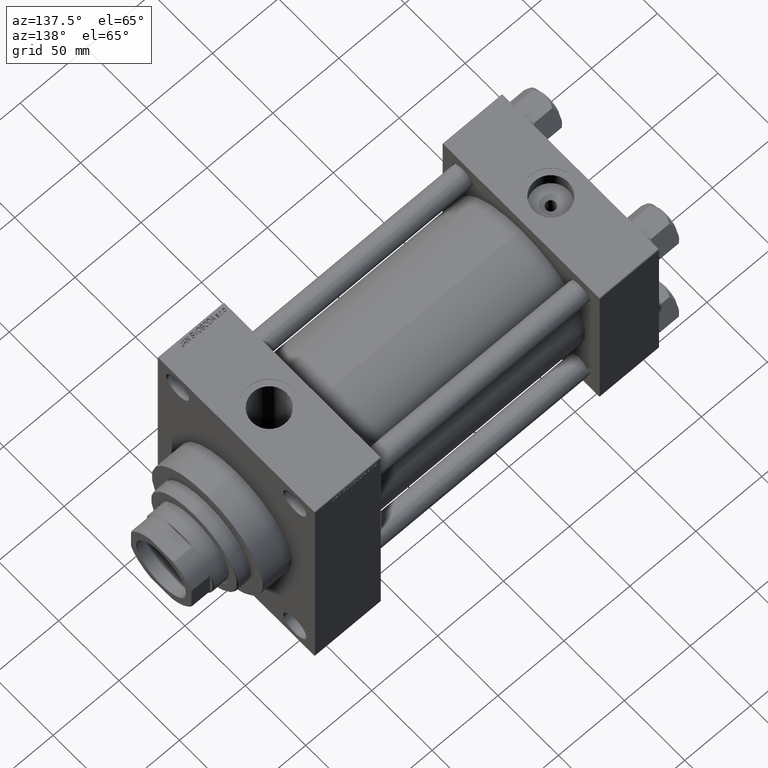
[diagram: clean part render]
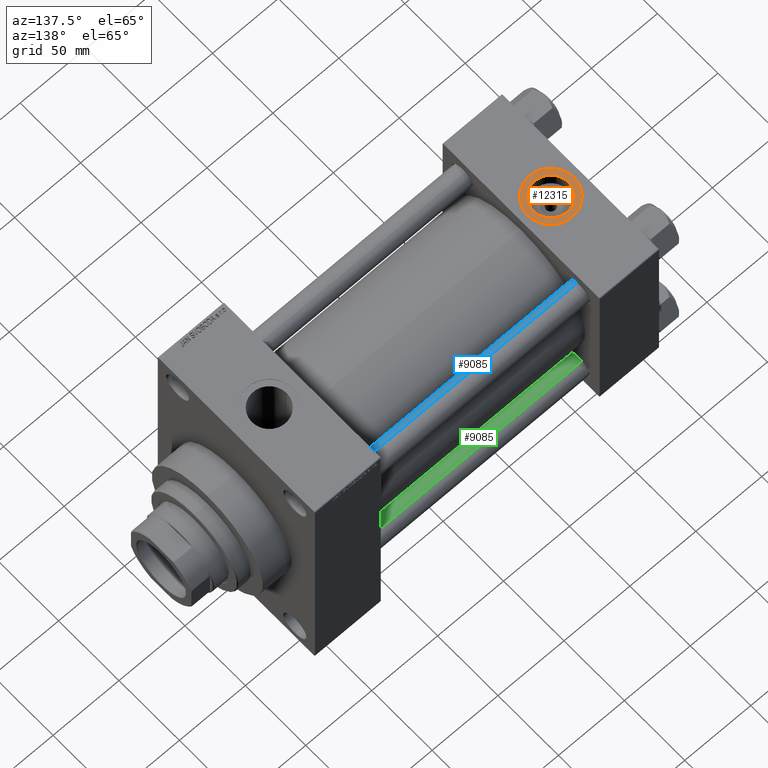
[diagram: same view with three faces highlighted in distinct colors, each labeled with its STEP entity id]
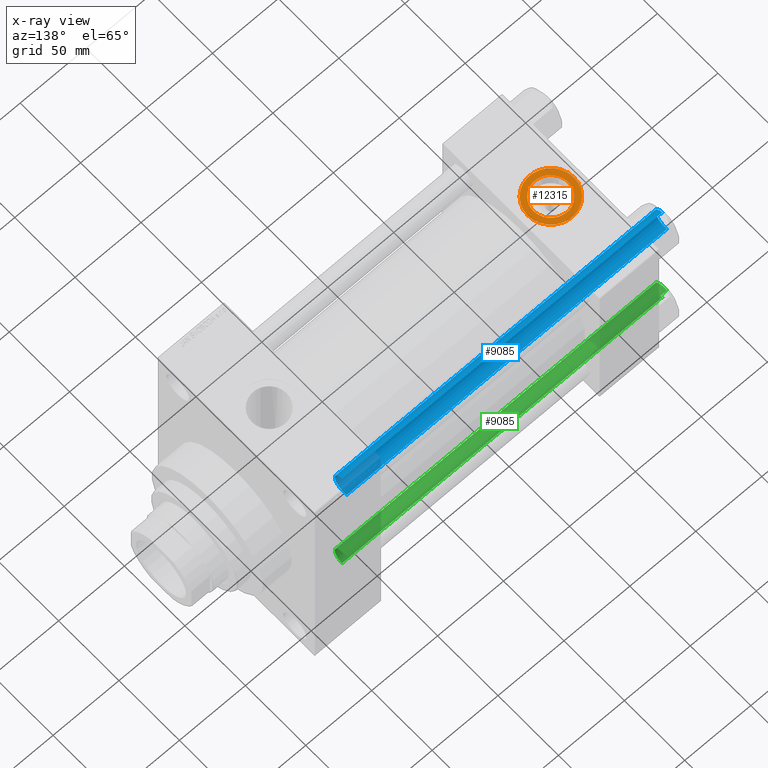
[diagram: x-ray of the same camera — body ghosted, the three highlighted faces saturated]
A machine part, auxiliary view with three faces highlighted in distinct colors.
The next image is the same camera in x-ray (body ghosted, the three faces saturated) — at least one of them is partly hidden behind the body in this view.
Their STEP definitions:

[orange] entity #12315 — the highlighted planar face has unit normal (0, 0, 1).
#1980 = AXIS2_PLACEMENT_3D ( 'NONE', #22598, #41646, #44795 ) ;
#4479 = CIRCLE ( 'NONE', #12971, 17.50000000000000000 ) ;
#6930 = DIRECTION ( 'NONE',  ( 0.000000000000000000, 0.000000000000000000, 1.000000000000000000 ) ) ;
#7250 = CARTESIAN_POINT ( 'NONE',  ( 22.50000000000000000, -8.673617379884035472E-15, 64.79999999999999716 ) ) ;
#7586 = VERTEX_POINT ( 'NONE', #8178 ) ;
#8178 = CARTESIAN_POINT ( 'NONE',  ( 40.00000000000000000, -8.673617379884035472E-15, 64.79999999999999716 ) ) ;
#9392 = CARTESIAN_POINT ( 'NONE',  ( 35.71999999999999886, -8.673617379884035472E-15, 64.79999999999999716 ) ) ;
#10447 = ORIENTED_EDGE ( 'NONE', *, *, #21418, .T. ) ;
#12315 = ADVANCED_FACE ( 'NONE', ( #25824, #21729 ), #36928, .T. ) ;
#12971 = AXIS2_PLACEMENT_3D ( 'NONE', #14490, #28775, #21529 ) ;
#14486 = DIRECTION ( 'NONE',  ( 1.000000000000000000, 0.000000000000000000, 0.000000000000000000 ) ) ;
#14490 = CARTESIAN_POINT ( 'NONE',  ( 22.50000000000000000, -8.673617379884035472E-15, 64.79999999999999716 ) ) ;
#15280 = EDGE_CURVE ( 'NONE', #38960, #7586, #4479, .T. ) ;
#15341 = CARTESIAN_POINT ( 'NONE',  ( 4.999999999999997335, -6.530485481376167224E-15, 64.79999999999999716 ) ) ;
#17953 = EDGE_LOOP ( 'NONE', ( #10447, #22885 ) ) ;
#18096 = DIRECTION ( 'NONE',  ( 1.000000000000000000, 0.000000000000000000, -0.000000000000000000 ) ) ;
#19179 = EDGE_LOOP ( 'NONE', ( #43774, #35041 ) ) ;
#21418 = EDGE_CURVE ( 'NONE', #7586, #38960, #25869, .T. ) ;
#21529 = DIRECTION ( 'NONE',  ( 1.000000000000000000, 0.000000000000000000, 0.000000000000000000 ) ) ;
#21729 = FACE_OUTER_BOUND ( 'NONE', #17953, .T. ) ;
#22598 = CARTESIAN_POINT ( 'NONE',  ( 22.50000000000000000, -8.673617379884035472E-15, 64.79999999999999716 ) ) ;
#22885 = ORIENTED_EDGE ( 'NONE', *, *, #15280, .T. ) ;
#25824 = FACE_BOUND ( 'NONE', #19179, .T. ) ;
#25869 = CIRCLE ( 'NONE', #1980, 17.50000000000000000 ) ;
#28775 = DIRECTION ( 'NONE',  ( 0.000000000000000000, 0.000000000000000000, 1.000000000000000000 ) ) ;
#29184 = AXIS2_PLACEMENT_3D ( 'NONE', #29212, #29682, #18096 ) ;
#29212 = CARTESIAN_POINT ( 'NONE',  ( 22.50000000000000000, -8.673617379884035472E-15, 64.79999999999999716 ) ) ;
#29225 = EDGE_CURVE ( 'NONE', #30119, #35245, #46175, .T. ) ;
#29682 = DIRECTION ( 'NONE',  ( 0.000000000000000000, 0.000000000000000000, 1.000000000000000000 ) ) ;
#29949 = DIRECTION ( 'NONE',  ( 0.000000000000000000, 0.000000000000000000, 1.000000000000000000 ) ) ;
#30119 = VERTEX_POINT ( 'NONE', #38142 ) ;
#31527 = AXIS2_PLACEMENT_3D ( 'NONE', #7250, #29949, #14486 ) ;
#33008 = DIRECTION ( 'NONE',  ( 1.000000000000000000, 0.000000000000000000, 0.000000000000000000 ) ) ;
#35041 = ORIENTED_EDGE ( 'NONE', *, *, #29225, .F. ) ;
#35245 = VERTEX_POINT ( 'NONE', #9392 ) ;
#36475 = AXIS2_PLACEMENT_3D ( 'NONE', #43626, #6930, #33008 ) ;
#36928 = PLANE ( 'NONE',  #29184 ) ;
#38142 = CARTESIAN_POINT ( 'NONE',  ( 9.279999999999994031, -7.054634311411234321E-15, 64.79999999999999716 ) ) ;
#38960 = VERTEX_POINT ( 'NONE', #15341 ) ;
#41646 = DIRECTION ( 'NONE',  ( 0.000000000000000000, 0.000000000000000000, 1.000000000000000000 ) ) ;
#42228 = EDGE_CURVE ( 'NONE', #35245, #30119, #42642, .T. ) ;
#42642 = CIRCLE ( 'NONE', #36475, 13.22000000000000242 ) ;
#43626 = CARTESIAN_POINT ( 'NONE',  ( 22.50000000000000000, -8.673617379884035472E-15, 64.79999999999999716 ) ) ;
#43774 = ORIENTED_EDGE ( 'NONE', *, *, #42228, .F. ) ;
#44795 = DIRECTION ( 'NONE',  ( 1.000000000000000000, 0.000000000000000000, 0.000000000000000000 ) ) ;
#46175 = CIRCLE ( 'NONE', #31527, 13.22000000000000242 ) ;

[blue] entity #9085 — the highlighted cylindrical surface (edge-blend (fillet) strip) has radius 8 mm, axis along (-1, -0, 0).
#261 = LINE ( 'NONE', #26582, #41164 ) ;
#730 = EDGE_CURVE ( 'NONE', #41807, #20914, #261, .T. ) ;
#1928 = DIRECTION ( 'NONE',  ( -0.000000000000000000, -0.000000000000000000, -1.000000000000000000 ) ) ;
#3253 = CYLINDRICAL_SURFACE ( 'NONE', #26772, 8.000000000000000000 ) ;
#4209 = FACE_OUTER_BOUND ( 'NONE', #26462, .T. ) ;
#5974 = CARTESIAN_POINT ( 'NONE',  ( 8.000000000000000000, 9.797174393178823685E-16, 0.5000000000001669775 ) ) ;
#6049 = AXIS2_PLACEMENT_3D ( 'NONE', #40707, #37809, #38039 ) ;
#6139 = DIRECTION ( 'NONE',  ( -0.000000000000000000, -0.000000000000000000, 1.000000000000000000 ) ) ;
#6369 = CIRCLE ( 'NONE', #39540, 8.000000000000000000 ) ;
#9085 = ADVANCED_FACE ( 'NONE', ( #4209 ), #3253, .T. ) ;
#11806 = EDGE_CURVE ( 'NONE', #41807, #45856, #14506, .T. ) ;
#14506 = CIRCLE ( 'NONE', #6049, 8.000000000000000000 ) ;
#17245 = DIRECTION ( 'NONE',  ( 1.000000000000000000, 0.000000000000000000, 0.000000000000000000 ) ) ;
#17998 = DIRECTION ( 'NONE',  ( -0.000000000000000000, -0.000000000000000000, -1.000000000000000000 ) ) ;
#18710 = DIRECTION ( 'NONE',  ( -1.000000000000000000, 0.000000000000000000, 0.000000000000000000 ) ) ;
#20294 = CARTESIAN_POINT ( 'NONE',  ( -8.000000000000000000, 0.000000000000000000, 244.0000000000000000 ) ) ;
#20591 = EDGE_CURVE ( 'NONE', #45856, #25780, #35971, .T. ) ;
#20914 = VERTEX_POINT ( 'NONE', #5974 ) ;
#21367 = ORIENTED_EDGE ( 'NONE', *, *, #20591, .T. ) ;
#23764 = ORIENTED_EDGE ( 'NONE', *, *, #730, .F. ) ;
#25780 = VERTEX_POINT ( 'NONE', #41716 ) ;
#26462 = EDGE_LOOP ( 'NONE', ( #23764, #32950, #21367, #27003 ) ) ;
#26582 = CARTESIAN_POINT ( 'NONE',  ( 8.000000000000000000, 9.797174393178823685E-16, 244.0000000000000000 ) ) ;
#26772 = AXIS2_PLACEMENT_3D ( 'NONE', #40438, #17998, #18710 ) ;
#27003 = ORIENTED_EDGE ( 'NONE', *, *, #44623, .T. ) ;
#31406 = CARTESIAN_POINT ( 'NONE',  ( -8.000000000000000000, 0.000000000000000000, 243.5000000000001421 ) ) ;
#32950 = ORIENTED_EDGE ( 'NONE', *, *, #11806, .T. ) ;
#35971 = LINE ( 'NONE', #20294, #37447 ) ;
#37447 = VECTOR ( 'NONE', #1928, 1000.000000000000000 ) ;
#37809 = DIRECTION ( 'NONE',  ( 0.000000000000000000, 0.000000000000000000, -1.000000000000000000 ) ) ;
#38039 = DIRECTION ( 'NONE',  ( 1.000000000000000000, 0.000000000000000000, 0.000000000000000000 ) ) ;
#39540 = AXIS2_PLACEMENT_3D ( 'NONE', #46467, #6139, #17245 ) ;
#40438 = CARTESIAN_POINT ( 'NONE',  ( 0.000000000000000000, 0.000000000000000000, 244.0000000000000000 ) ) ;
#40707 = CARTESIAN_POINT ( 'NONE',  ( 0.000000000000000000, 0.000000000000000000, 243.5000000000001421 ) ) ;
#41164 = VECTOR ( 'NONE', #41297, 1000.000000000000000 ) ;
#41297 = DIRECTION ( 'NONE',  ( -0.000000000000000000, -0.000000000000000000, -1.000000000000000000 ) ) ;
#41716 = CARTESIAN_POINT ( 'NONE',  ( -8.000000000000000000, 0.000000000000000000, 0.5000000000001669775 ) ) ;
#41807 = VERTEX_POINT ( 'NONE', #47546 ) ;
#44623 = EDGE_CURVE ( 'NONE', #25780, #20914, #6369, .T. ) ;
#45856 = VERTEX_POINT ( 'NONE', #31406 ) ;
#46467 = CARTESIAN_POINT ( 'NONE',  ( 0.000000000000000000, 0.000000000000000000, 0.5000000000001669775 ) ) ;
#47546 = CARTESIAN_POINT ( 'NONE',  ( 8.000000000000000000, 9.797174393178823685E-16, 243.5000000000001421 ) ) ;

[green] entity #9085 — the highlighted cylindrical surface (edge-blend (fillet) strip) has radius 8 mm, axis along (1, -0, 0).
#261 = LINE ( 'NONE', #26582, #41164 ) ;
#730 = EDGE_CURVE ( 'NONE', #41807, #20914, #261, .T. ) ;
#1928 = DIRECTION ( 'NONE',  ( -0.000000000000000000, -0.000000000000000000, -1.000000000000000000 ) ) ;
#3253 = CYLINDRICAL_SURFACE ( 'NONE', #26772, 8.000000000000000000 ) ;
#4209 = FACE_OUTER_BOUND ( 'NONE', #26462, .T. ) ;
#5974 = CARTESIAN_POINT ( 'NONE',  ( 8.000000000000000000, 9.797174393178823685E-16, 0.5000000000001669775 ) ) ;
#6049 = AXIS2_PLACEMENT_3D ( 'NONE', #40707, #37809, #38039 ) ;
#6139 = DIRECTION ( 'NONE',  ( -0.000000000000000000, -0.000000000000000000, 1.000000000000000000 ) ) ;
#6369 = CIRCLE ( 'NONE', #39540, 8.000000000000000000 ) ;
#9085 = ADVANCED_FACE ( 'NONE', ( #4209 ), #3253, .T. ) ;
#11806 = EDGE_CURVE ( 'NONE', #41807, #45856, #14506, .T. ) ;
#14506 = CIRCLE ( 'NONE', #6049, 8.000000000000000000 ) ;
#17245 = DIRECTION ( 'NONE',  ( 1.000000000000000000, 0.000000000000000000, 0.000000000000000000 ) ) ;
#17998 = DIRECTION ( 'NONE',  ( -0.000000000000000000, -0.000000000000000000, -1.000000000000000000 ) ) ;
#18710 = DIRECTION ( 'NONE',  ( -1.000000000000000000, 0.000000000000000000, 0.000000000000000000 ) ) ;
#20294 = CARTESIAN_POINT ( 'NONE',  ( -8.000000000000000000, 0.000000000000000000, 244.0000000000000000 ) ) ;
#20591 = EDGE_CURVE ( 'NONE', #45856, #25780, #35971, .T. ) ;
#20914 = VERTEX_POINT ( 'NONE', #5974 ) ;
#21367 = ORIENTED_EDGE ( 'NONE', *, *, #20591, .T. ) ;
#23764 = ORIENTED_EDGE ( 'NONE', *, *, #730, .F. ) ;
#25780 = VERTEX_POINT ( 'NONE', #41716 ) ;
#26462 = EDGE_LOOP ( 'NONE', ( #23764, #32950, #21367, #27003 ) ) ;
#26582 = CARTESIAN_POINT ( 'NONE',  ( 8.000000000000000000, 9.797174393178823685E-16, 244.0000000000000000 ) ) ;
#26772 = AXIS2_PLACEMENT_3D ( 'NONE', #40438, #17998, #18710 ) ;
#27003 = ORIENTED_EDGE ( 'NONE', *, *, #44623, .T. ) ;
#31406 = CARTESIAN_POINT ( 'NONE',  ( -8.000000000000000000, 0.000000000000000000, 243.5000000000001421 ) ) ;
#32950 = ORIENTED_EDGE ( 'NONE', *, *, #11806, .T. ) ;
#35971 = LINE ( 'NONE', #20294, #37447 ) ;
#37447 = VECTOR ( 'NONE', #1928, 1000.000000000000000 ) ;
#37809 = DIRECTION ( 'NONE',  ( 0.000000000000000000, 0.000000000000000000, -1.000000000000000000 ) ) ;
#38039 = DIRECTION ( 'NONE',  ( 1.000000000000000000, 0.000000000000000000, 0.000000000000000000 ) ) ;
#39540 = AXIS2_PLACEMENT_3D ( 'NONE', #46467, #6139, #17245 ) ;
#40438 = CARTESIAN_POINT ( 'NONE',  ( 0.000000000000000000, 0.000000000000000000, 244.0000000000000000 ) ) ;
#40707 = CARTESIAN_POINT ( 'NONE',  ( 0.000000000000000000, 0.000000000000000000, 243.5000000000001421 ) ) ;
#41164 = VECTOR ( 'NONE', #41297, 1000.000000000000000 ) ;
#41297 = DIRECTION ( 'NONE',  ( -0.000000000000000000, -0.000000000000000000, -1.000000000000000000 ) ) ;
#41716 = CARTESIAN_POINT ( 'NONE',  ( -8.000000000000000000, 0.000000000000000000, 0.5000000000001669775 ) ) ;
#41807 = VERTEX_POINT ( 'NONE', #47546 ) ;
#44623 = EDGE_CURVE ( 'NONE', #25780, #20914, #6369, .T. ) ;
#45856 = VERTEX_POINT ( 'NONE', #31406 ) ;
#46467 = CARTESIAN_POINT ( 'NONE',  ( 0.000000000000000000, 0.000000000000000000, 0.5000000000001669775 ) ) ;
#47546 = CARTESIAN_POINT ( 'NONE',  ( 8.000000000000000000, 9.797174393178823685E-16, 243.5000000000001421 ) ) ;